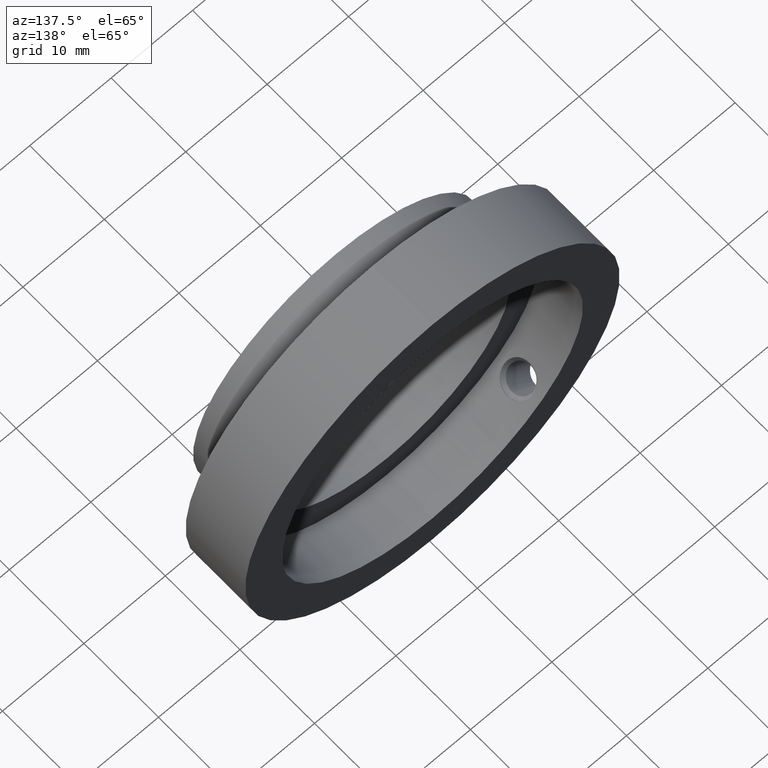
[diagram: clean part render]
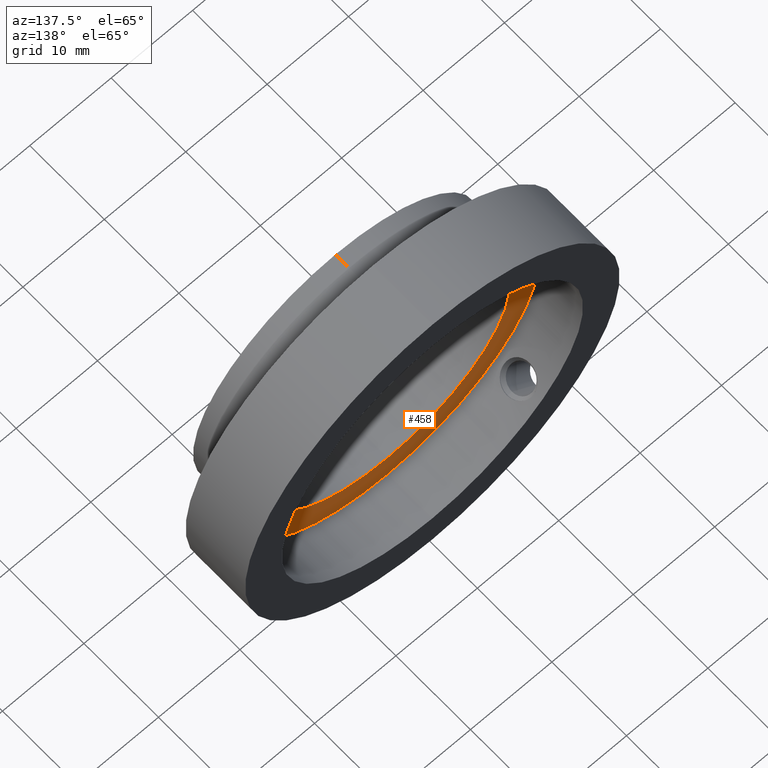
[diagram: same view with one face highlighted and labeled with its STEP entity id]
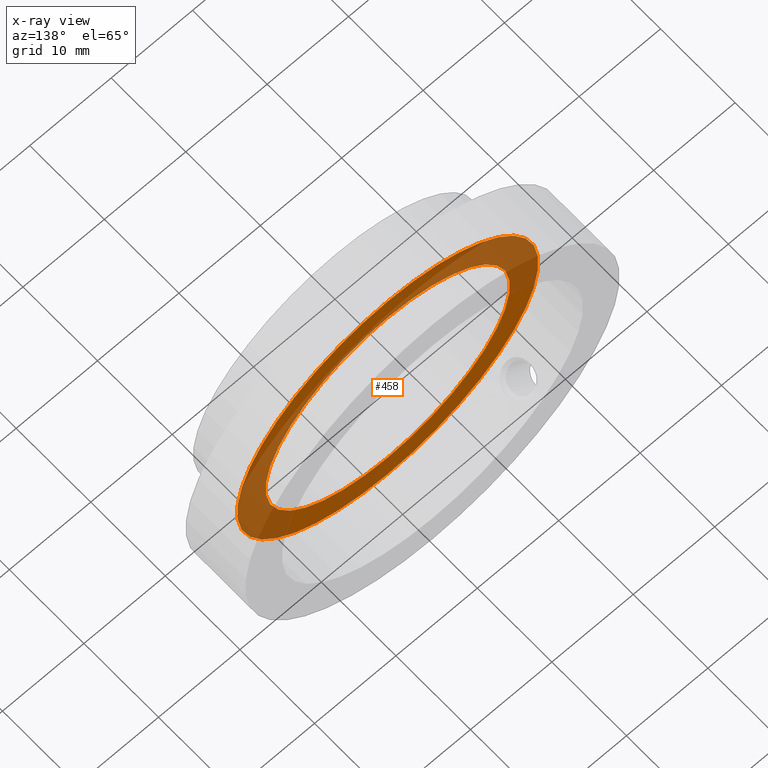
[diagram: x-ray of the same camera — body ghosted, the highlighted face saturated]
A machine part, auxiliary view. The second image highlights one B-rep face of the part: STEP entity #458.
The next image is the same camera in x-ray: the body ghosted, the highlighted face saturated — about 46% of this face is hidden behind the body in this view.
In plain terms, the highlighted planar face has unit normal (0, -1, -0).
Its self-contained STEP definition (entity closure, byte-faithful):
#98 = VERTEX_POINT ( 'NONE', #1158 ) ;
#99 = AXIS2_PLACEMENT_3D ( 'NONE', #674, #396, #299 ) ;
#101 = ORIENTED_EDGE ( 'NONE', *, *, #993, .F. ) ;
#102 = EDGE_LOOP ( 'NONE', ( #931, #101 ) ) ;
#112 = VERTEX_POINT ( 'NONE', #130 ) ;
#130 = CARTESIAN_POINT ( 'NONE',  ( 2.265596578422603400E-015, -2.003278688524597700, 18.50000000000000000 ) ) ;
#135 = CIRCLE ( 'NONE', #531, 18.50000000000000000 ) ;
#161 = DIRECTION ( 'NONE',  ( 0.0000000000000000000, 0.0000000000000000000, -1.000000000000000000 ) ) ;
#197 = PLANE ( 'NONE',  #99 ) ;
#207 = VERTEX_POINT ( 'NONE', #808 ) ;
#272 = EDGE_LOOP ( 'NONE', ( #298, #787 ) ) ;
#298 = ORIENTED_EDGE ( 'NONE', *, *, #300, .T. ) ;
#299 = DIRECTION ( 'NONE',  ( 0.0000000000000000000, 0.0000000000000000000, -1.000000000000000000 ) ) ;
#300 = EDGE_CURVE ( 'NONE', #1149, #207, #609, .T. ) ;
#323 = FACE_BOUND ( 'NONE', #272, .T. ) ;
#357 = DIRECTION ( 'NONE',  ( -0.0000000000000000000, -1.000000000000000000, -0.0000000000000000000 ) ) ;
#396 = DIRECTION ( 'NONE',  ( 0.0000000000000000000, -1.000000000000000000, -0.0000000000000000000 ) ) ;
#431 = CARTESIAN_POINT ( 'NONE',  ( 0.0000000000000000000, -2.003278688524599000, 0.0000000000000000000 ) ) ;
#447 = CARTESIAN_POINT ( 'NONE',  ( 0.0000000000000000000, -2.003278688524599000, 0.0000000000000000000 ) ) ;
#458 = ADVANCED_FACE ( 'NONE', ( #799, #323 ), #197, .F. ) ;
#521 = DIRECTION ( 'NONE',  ( 0.0000000000000000000, 0.0000000000000000000, -1.000000000000000000 ) ) ;
#531 = AXIS2_PLACEMENT_3D ( 'NONE', #1154, #777, #521 ) ;
#571 = AXIS2_PLACEMENT_3D ( 'NONE', #1104, #629, #901 ) ;
#609 = CIRCLE ( 'NONE', #1151, 15.00000000000000000 ) ;
#629 = DIRECTION ( 'NONE',  ( -0.0000000000000000000, -1.000000000000000000, -0.0000000000000000000 ) ) ;
#641 = DIRECTION ( 'NONE',  ( -0.0000000000000000000, -1.000000000000000000, -0.0000000000000000000 ) ) ;
#671 = EDGE_CURVE ( 'NONE', #98, #112, #1002, .T. ) ;
#674 = CARTESIAN_POINT ( 'NONE',  ( -15.00000000000000000, -2.003278688524598100, 0.0000000000000000000 ) ) ;
#694 = CARTESIAN_POINT ( 'NONE',  ( 0.0000000000000000000, -2.003278688524599000, -15.00000000000000000 ) ) ;
#728 = EDGE_CURVE ( 'NONE', #207, #1149, #886, .T. ) ;
#777 = DIRECTION ( 'NONE',  ( -0.0000000000000000000, -1.000000000000000000, -0.0000000000000000000 ) ) ;
#787 = ORIENTED_EDGE ( 'NONE', *, *, #728, .T. ) ;
#799 = FACE_OUTER_BOUND ( 'NONE', #102, .T. ) ;
#808 = CARTESIAN_POINT ( 'NONE',  ( 1.836970198721029600E-015, -2.003278688524599000, 15.00000000000000000 ) ) ;
#886 = CIRCLE ( 'NONE', #1100, 15.00000000000000000 ) ;
#901 = DIRECTION ( 'NONE',  ( 0.0000000000000000000, 0.0000000000000000000, -1.000000000000000000 ) ) ;
#916 = DIRECTION ( 'NONE',  ( 0.0000000000000000000, 0.0000000000000000000, -1.000000000000000000 ) ) ;
#931 = ORIENTED_EDGE ( 'NONE', *, *, #671, .F. ) ;
#993 = EDGE_CURVE ( 'NONE', #112, #98, #135, .T. ) ;
#1002 = CIRCLE ( 'NONE', #571, 18.50000000000000000 ) ;
#1100 = AXIS2_PLACEMENT_3D ( 'NONE', #431, #641, #916 ) ;
#1104 = CARTESIAN_POINT ( 'NONE',  ( 0.0000000000000000000, -2.003278688524597700, 0.0000000000000000000 ) ) ;
#1149 = VERTEX_POINT ( 'NONE', #694 ) ;
#1151 = AXIS2_PLACEMENT_3D ( 'NONE', #447, #357, #161 ) ;
#1154 = CARTESIAN_POINT ( 'NONE',  ( 0.0000000000000000000, -2.003278688524597700, 0.0000000000000000000 ) ) ;
#1158 = CARTESIAN_POINT ( 'NONE',  ( 0.0000000000000000000, -2.003278688524597700, -18.50000000000000000 ) ) ;